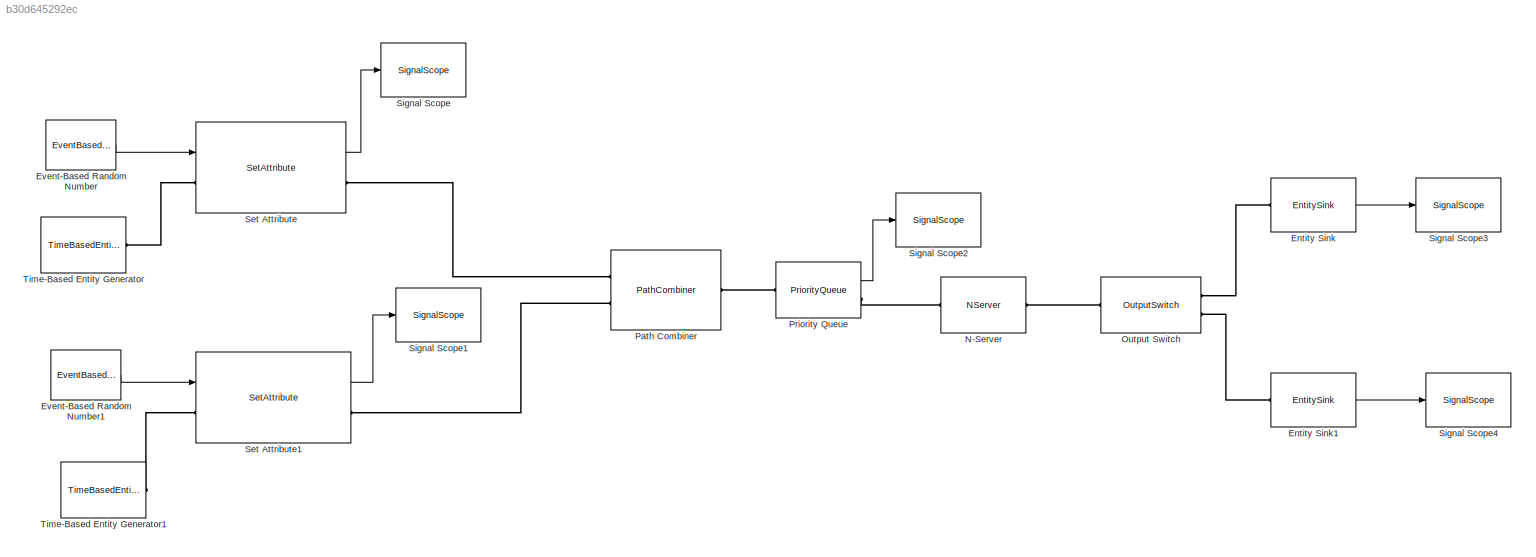
MODEL slx_b30d645292ec
KIND model
BLOCK [EntitySink] Entity Sink
  OutputPortMap = o0
  Ports = [0, 1, 0, 0, 0, 1]
  StatNumberArrived = on
BLOCK [EntitySink] Entity Sink1
  OutputPortMap = o0
  Ports = [0, 1, 0, 0, 0, 1]
  StatNumberArrived = on
BLOCK [EventBasedRandomNumber] Event-Based Random Number
  Distribution = Uniform
  OutputPortMap = o0
  Ports = [0, 1]
  maxUnif = 390
  minUnif = 210
BLOCK [EventBasedRandomNumber] Event-Based Random Number1
  Distribution = Uniform
  OutputPortMap = o0
  Ports = [0, 1]
  maxUnif = 130
  minUnif = 70
BLOCK [NServer] N-Server
  NumberOfServers = 2
  Ports = [0, 0, 0, 0, 0, 1, 1]
  ServiceTimeFrom = Attribute
BLOCK [OutputSwitch] Output Switch
  AttributeName = PriorityAttributeName
  NumberOutputPorts = 2
  Ports = [0, 0, 0, 0, 0, 1, 2]
  SwitchingCriterion = From attribute
BLOCK [PathCombiner] Path Combiner
  NumberInputPorts = 2
  Ports = [0, 0, 0, 0, 0, 2, 1]
BLOCK [PriorityQueue] Priority Queue
  OutputPortMap = o3
  Ports = [0, 1, 0, 0, 0, 1, 1]
  StatAverageQueueLength = on
BLOCK [SetAttribute] Set Attribute
  AttributeFrom = Dialog|Signal port
  AttributeName = PriorityAttributeName|ServiceTime
  AttributeTreatAsVector = 1|1
  AttributeValue = 1|1
  EvaluatedAttributeValue = { 1;[]}
  InputPortMap = u1
  OutputPortMap = o0
  Ports = [1, 1, 0, 0, 0, 1, 1]
  StatNumberDeparted = on
BLOCK [SetAttribute] Set Attribute1
  AttributeFrom = Dialog|Signal port
  AttributeName = PriorityAttributeName|ServiceTime
  AttributeTreatAsVector = 1|1
  AttributeValue = 2|1
  EvaluatedAttributeValue = { 2;[]}
  InputPortMap = u1
  OutputPortMap = o0
  Ports = [1, 1, 0, 0, 0, 1, 1]
  StatNumberDeparted = on
BLOCK [SignalScope] Signal Scope
  CopyFcn = des.scope.CallbackSupport('seCopyFcn',gcbh)
  DeleteFcn = des.scope.CallbackSupport('seDeleteFcn',gcbh)
  InputPortMap = u0
  LoadFcn = des.scope.CallbackSupport('seLoadFcn',gcbh)
  NameChangeFcn = des.scope.CallbackSupport('seNameChangeFcn',gcbh)
  OpenFcn = des.scope.CallbackSupport('seOpenFcn',gcbh)
  Ports = [1]
  PreSaveFcn = des.scope.CallbackSupport('sePreSaveFcn',gcbh)
  StartFcn = des.scope.CallbackSupport('seStartFcn',gcbh)
  StopFcn = des.scope.CallbackSupport('seStopFcn',gcbh)
BLOCK [SignalScope] Signal Scope1
  CopyFcn = des.scope.CallbackSupport('seCopyFcn',gcbh)
  DeleteFcn = des.scope.CallbackSupport('seDeleteFcn',gcbh)
  InputPortMap = u0
  LoadFcn = des.scope.CallbackSupport('seLoadFcn',gcbh)
  NameChangeFcn = des.scope.CallbackSupport('seNameChangeFcn',gcbh)
  OpenFcn = des.scope.CallbackSupport('seOpenFcn',gcbh)
  Ports = [1]
  PreSaveFcn = des.scope.CallbackSupport('sePreSaveFcn',gcbh)
  StartFcn = des.scope.CallbackSupport('seStartFcn',gcbh)
  StopFcn = des.scope.CallbackSupport('seStopFcn',gcbh)
BLOCK [SignalScope] Signal Scope2
  CopyFcn = des.scope.CallbackSupport('seCopyFcn',gcbh)
  DeleteFcn = des.scope.CallbackSupport('seDeleteFcn',gcbh)
  InputPortMap = u0
  LoadFcn = des.scope.CallbackSupport('seLoadFcn',gcbh)
  NameChangeFcn = des.scope.CallbackSupport('seNameChangeFcn',gcbh)
  OpenFcn = des.scope.CallbackSupport('seOpenFcn',gcbh)
  Ports = [1]
  PreSaveFcn = des.scope.CallbackSupport('sePreSaveFcn',gcbh)
  StartFcn = des.scope.CallbackSupport('seStartFcn',gcbh)
  StopFcn = des.scope.CallbackSupport('seStopFcn',gcbh)
BLOCK [SignalScope] Signal Scope3
  CopyFcn = des.scope.CallbackSupport('seCopyFcn',gcbh)
  DeleteFcn = des.scope.CallbackSupport('seDeleteFcn',gcbh)
  InputPortMap = u0
  LoadFcn = des.scope.CallbackSupport('seLoadFcn',gcbh)
  NameChangeFcn = des.scope.CallbackSupport('seNameChangeFcn',gcbh)
  OpenFcn = des.scope.CallbackSupport('seOpenFcn',gcbh)
  Ports = [1]
  PreSaveFcn = des.scope.CallbackSupport('sePreSaveFcn',gcbh)
  StartFcn = des.scope.CallbackSupport('seStartFcn',gcbh)
  StopFcn = des.scope.CallbackSupport('seStopFcn',gcbh)
BLOCK [SignalScope] Signal Scope4
  CopyFcn = des.scope.CallbackSupport('seCopyFcn',gcbh)
  DeleteFcn = des.scope.CallbackSupport('seDeleteFcn',gcbh)
  InputPortMap = u0
  LoadFcn = des.scope.CallbackSupport('seLoadFcn',gcbh)
  NameChangeFcn = des.scope.CallbackSupport('seNameChangeFcn',gcbh)
  OpenFcn = des.scope.CallbackSupport('seOpenFcn',gcbh)
  Ports = [1]
  PreSaveFcn = des.scope.CallbackSupport('sePreSaveFcn',gcbh)
  StartFcn = des.scope.CallbackSupport('seStartFcn',gcbh)
  StopFcn = des.scope.CallbackSupport('seStopFcn',gcbh)
BLOCK [TimeBasedEntityGenerator] Time-Based Entity Generator
  Distribution = Uniform
  Maximum = 780
  Mean = 12
  Minimum = 60
  Ports = [0, 0, 0, 0, 0, 0, 1]
BLOCK [TimeBasedEntityGenerator] Time-Based Entity Generator1
  Distribution = Uniform
  Maximum = 600
  Mean = 12
  Minimum = 120
  Ports = [0, 0, 0, 0, 0, 0, 1]
LINE Entity Sink1:1 -> Signal Scope4:1
LINE Entity Sink:1 -> Signal Scope3:1
LINE Event-Based Random Number1:1 -> Set Attribute1:1
LINE Event-Based Random Number:1 -> Set Attribute:1
LINE Priority Queue:1 -> Signal Scope2:1
LINE Set Attribute1:1 -> Signal Scope1:1
LINE Set Attribute:1 -> Signal Scope:1
PLINE Entity Sink1:LConn1 -- Output Switch:RConn2
PLINE Entity Sink:LConn1 -- Output Switch:RConn1
PLINE N-Server:LConn1 -- Priority Queue:RConn1
PLINE N-Server:RConn1 -- Output Switch:LConn1
PLINE Path Combiner:LConn1 -- Set Attribute:RConn1
PLINE Path Combiner:LConn2 -- Set Attribute1:RConn1
PLINE Path Combiner:RConn1 -- Priority Queue:LConn1
PLINE Set Attribute1:LConn1 -- Time-Based Entity Generator1:RConn1
PLINE Set Attribute:LConn1 -- Time-Based Entity Generator:RConn1
